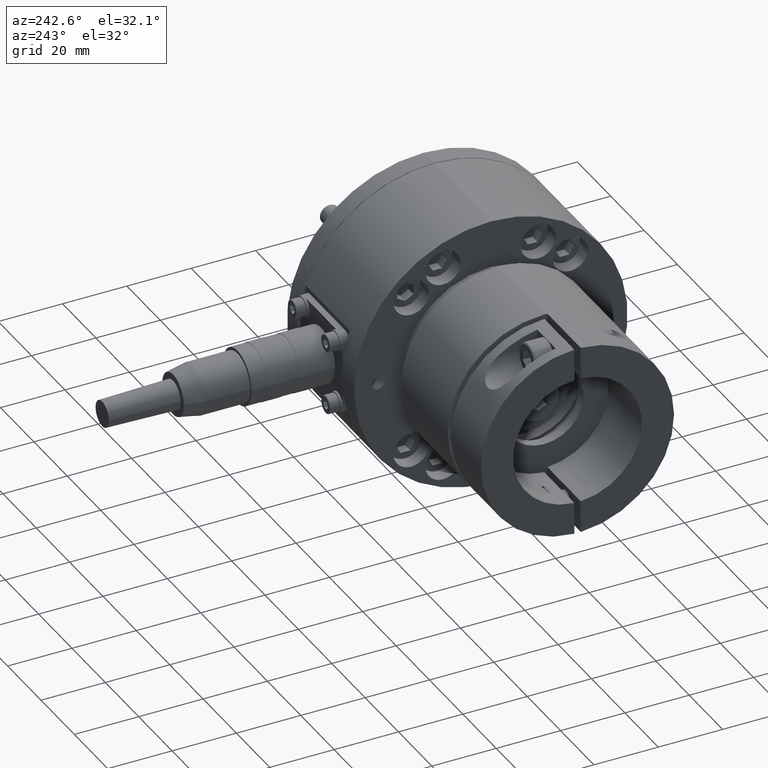
[diagram: clean part render]
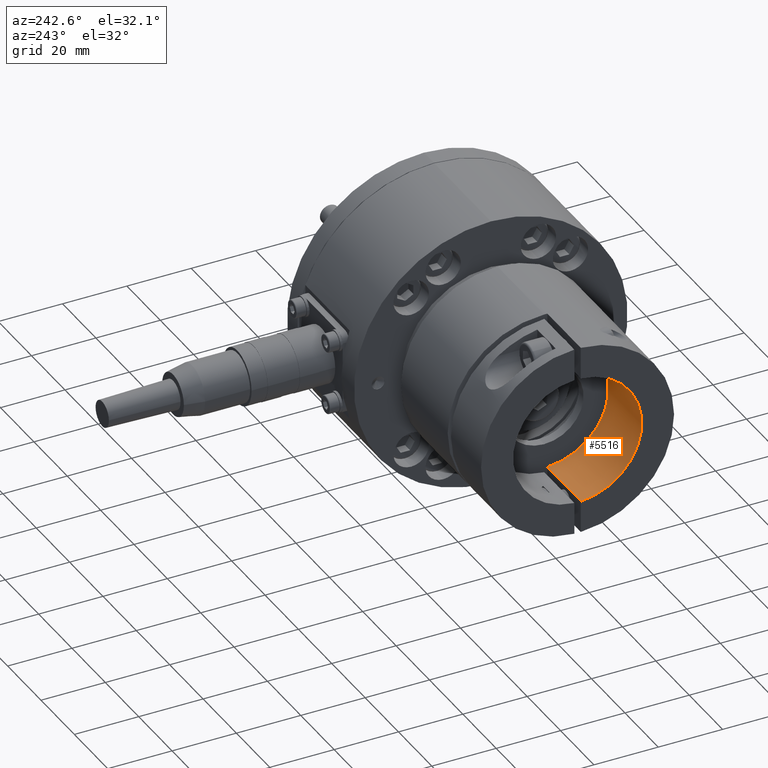
[diagram: same view with one face highlighted and labeled with its STEP entity id]
A machine part, auxiliary view. The second image highlights one B-rep face of the part: STEP entity #5516.
In plain terms, the highlighted cylindrical surface (partial cylindrical patch) has radius 20 mm, axis along (1, 0, 0).
Its self-contained STEP definition (entity closure, byte-faithful):
#787 = LINE ( 'NONE', #18316, #5724 ) ;
#814 = VERTEX_POINT ( 'NONE', #6133 ) ;
#845 = EDGE_CURVE ( 'NONE', #9164, #814, #3047, .T. ) ;
#1473 = ORIENTED_EDGE ( 'NONE', *, *, #845, .T. ) ;
#1557 = EDGE_LOOP ( 'NONE', ( #1473, #19454, #14114, #14444 ) ) ;
#1639 = DIRECTION ( 'NONE',  ( 0.000000000000000000, 0.000000000000000000, 1.000000000000000000 ) ) ;
#2037 = EDGE_CURVE ( 'NONE', #12802, #16534, #17781, .T. ) ;
#2317 = CARTESIAN_POINT ( 'NONE',  ( 45.00000000000000000, 0.000000000000000000, 0.000000000000000000 ) ) ;
#2333 = LINE ( 'NONE', #18021, #13125 ) ;
#2428 = CARTESIAN_POINT ( 'NONE',  ( 24.99999999999999645, -1.000000000000000000, -19.97498435543818474 ) ) ;
#3047 = CIRCLE ( 'NONE', #10973, 20.00000000000000000 ) ;
#3201 = FACE_OUTER_BOUND ( 'NONE', #1557, .T. ) ;
#3320 = EDGE_CURVE ( 'NONE', #814, #16534, #2333, .T. ) ;
#4525 = CARTESIAN_POINT ( 'NONE',  ( 45.00000000000000000, -1.000000000000000444, -19.97498435543818118 ) ) ;
#4782 = DIRECTION ( 'NONE',  ( -1.000000000000000000, -0.000000000000000000, -0.000000000000000000 ) ) ;
#4997 = DIRECTION ( 'NONE',  ( -1.000000000000000000, -0.000000000000000000, -0.000000000000000000 ) ) ;
#5484 = CARTESIAN_POINT ( 'NONE',  ( 24.99999999999999645, 0.000000000000000000, 0.000000000000000000 ) ) ;
#5516 = ADVANCED_FACE ( 'NONE', ( #3201 ), #6263, .F. ) ;
#5549 = DIRECTION ( 'NONE',  ( -1.000000000000000000, -0.000000000000000000, -0.000000000000000000 ) ) ;
#5724 = VECTOR ( 'NONE', #4997, 1000.000000000000000 ) ;
#6133 = CARTESIAN_POINT ( 'NONE',  ( 24.99999999999999645, -1.000000000000000888, 19.97498435543818118 ) ) ;
#6263 = CYLINDRICAL_SURFACE ( 'NONE', #6537, 20.00000000000000000 ) ;
#6537 = AXIS2_PLACEMENT_3D ( 'NONE', #9207, #4782, #1639 ) ;
#7631 = DIRECTION ( 'NONE',  ( 1.000000000000000000, 0.000000000000000000, 0.000000000000000000 ) ) ;
#8927 = CARTESIAN_POINT ( 'NONE',  ( 45.00000000000000000, -1.000000000000000444, 19.97498435543816342 ) ) ;
#9164 = VERTEX_POINT ( 'NONE', #2428 ) ;
#9207 = CARTESIAN_POINT ( 'NONE',  ( -9.653853281810471643, 0.000000000000000000, 0.000000000000000000 ) ) ;
#10973 = AXIS2_PLACEMENT_3D ( 'NONE', #5484, #5549, #14455 ) ;
#11330 = DIRECTION ( 'NONE',  ( -1.000000000000000000, -0.000000000000000000, -0.000000000000000000 ) ) ;
#12802 = VERTEX_POINT ( 'NONE', #4525 ) ;
#12812 = DIRECTION ( 'NONE',  ( 0.000000000000000000, 0.000000000000000000, 1.000000000000000000 ) ) ;
#13125 = VECTOR ( 'NONE', #7631, 1000.000000000000000 ) ;
#14114 = ORIENTED_EDGE ( 'NONE', *, *, #2037, .F. ) ;
#14444 = ORIENTED_EDGE ( 'NONE', *, *, #18224, .T. ) ;
#14455 = DIRECTION ( 'NONE',  ( 0.000000000000000000, 0.000000000000000000, 1.000000000000000000 ) ) ;
#15410 = AXIS2_PLACEMENT_3D ( 'NONE', #2317, #11330, #12812 ) ;
#16534 = VERTEX_POINT ( 'NONE', #8927 ) ;
#17781 = CIRCLE ( 'NONE', #15410, 20.00000000000000000 ) ;
#18021 = CARTESIAN_POINT ( 'NONE',  ( -9.653853281810471643, -0.9999999999999988898, 19.97498435543817763 ) ) ;
#18224 = EDGE_CURVE ( 'NONE', #12802, #9164, #787, .T. ) ;
#18316 = CARTESIAN_POINT ( 'NONE',  ( -9.653853281810471643, -0.9999999999999988898, -19.97498435543817763 ) ) ;
#19454 = ORIENTED_EDGE ( 'NONE', *, *, #3320, .T. ) ;